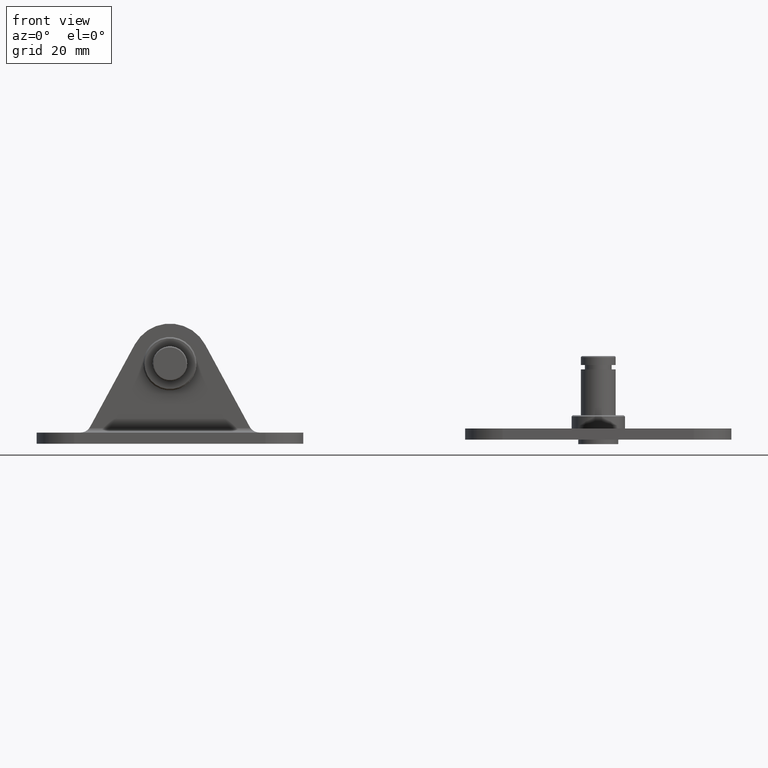
[diagram: clean part render]
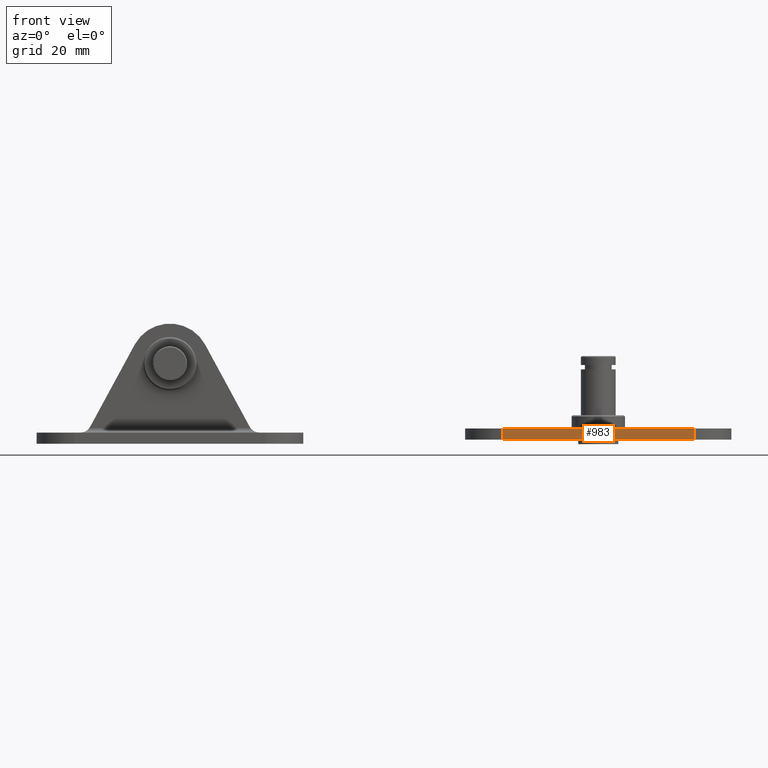
[diagram: same view with one face highlighted and labeled with its STEP entity id]
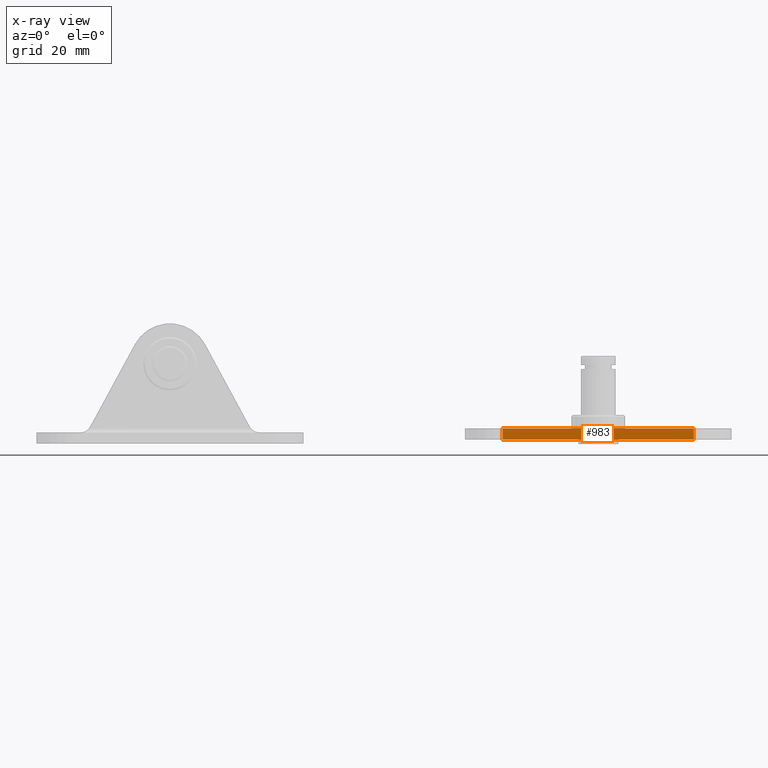
[diagram: x-ray of the same camera — body ghosted, the highlighted face saturated]
A machine part, front view. The second image highlights one B-rep face of the part: STEP entity #983.
The next image is the same camera in x-ray: the body ghosted, the highlighted face saturated — about 0% of this face is hidden behind the body in this view.
In plain terms, the highlighted planar face has unit normal (-0, -1, 0).
Its self-contained STEP definition (entity closure, byte-faithful):
#73=LINE('',#1968,#119);
#74=LINE('',#1975,#120);
#75=LINE('',#1977,#121);
#76=LINE('',#1978,#122);
#119=VECTOR('',#1372,2.5);
#120=VECTOR('',#1381,2.5);
#121=VECTOR('',#1384,43.);
#122=VECTOR('',#1385,43.);
#166=PLANE('',#1105);
#291=FACE_OUTER_BOUND('',#385,.T.);
#385=EDGE_LOOP('',(#885,#886,#887,#888));
#543=VERTEX_POINT('',#1965);
#544=VERTEX_POINT('',#1967);
#545=VERTEX_POINT('',#1971);
#546=VERTEX_POINT('',#1973);
#660=EDGE_CURVE('',#543,#544,#73,.T.);
#664=EDGE_CURVE('',#545,#546,#74,.T.);
#665=EDGE_CURVE('',#543,#545,#75,.T.);
#666=EDGE_CURVE('',#544,#546,#76,.T.);
#885=ORIENTED_EDGE('',*,*,#665,.T.);
#886=ORIENTED_EDGE('',*,*,#664,.T.);
#887=ORIENTED_EDGE('',*,*,#666,.F.);
#888=ORIENTED_EDGE('',*,*,#660,.F.);
#983=ADVANCED_FACE('',(#291),#166,.T.);
#1105=AXIS2_PLACEMENT_3D('',#1976,#1382,#1383);
#1372=DIRECTION('',(0.,0.,1.));
#1381=DIRECTION('',(0.,0.,1.));
#1382=DIRECTION('center_axis',(0.,-1.,0.));
#1383=DIRECTION('ref_axis',(1.,0.,0.));
#1384=DIRECTION('',(1.,0.,0.));
#1385=DIRECTION('',(1.,0.,0.));
#1965=CARTESIAN_POINT('',(8.5,-8.5,0.));
#1967=CARTESIAN_POINT('',(8.5,-8.5,2.5));
#1968=CARTESIAN_POINT('',(8.5,-8.5,0.));
#1971=CARTESIAN_POINT('',(51.5,-8.5,0.));
#1973=CARTESIAN_POINT('',(51.5,-8.5,2.5));
#1975=CARTESIAN_POINT('',(51.5,-8.5,0.));
#1976=CARTESIAN_POINT('Origin',(8.5,-8.5,0.));
#1977=CARTESIAN_POINT('',(8.5,-8.5,0.));
#1978=CARTESIAN_POINT('',(8.5,-8.5,2.5));